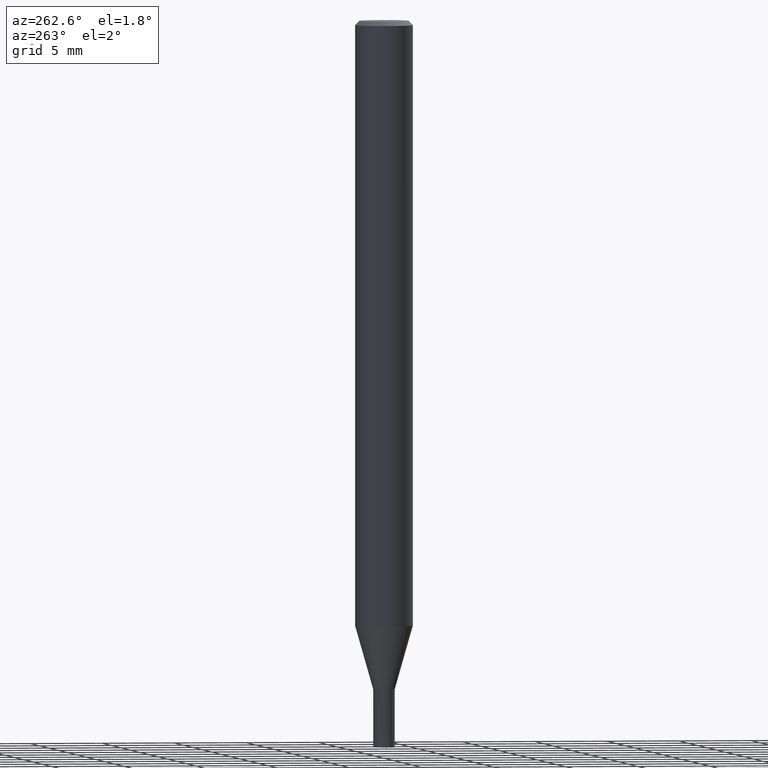
[diagram: clean part render]
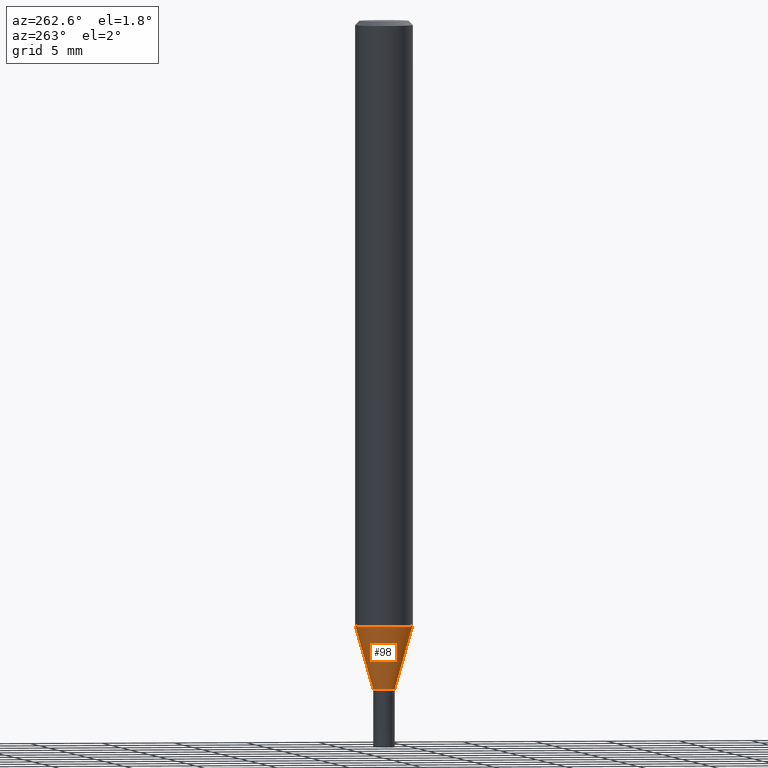
[diagram: same view with one face highlighted and labeled with its STEP entity id]
A machine part, auxiliary view. The second image highlights one B-rep face of the part: STEP entity #98.
In plain terms, the highlighted conical surface has half-angle 16.001 deg.
Its self-contained STEP definition (entity closure, byte-faithful):
#84=VERTEX_POINT('',#205);
#86=EDGE_CURVE('',#106,#84,#207,.T.);
#98=ADVANCED_FACE('',(#221),#222,.T.);
#106=VERTEX_POINT('',#230);
#108=EDGE_CURVE('',#106,#114,#232,.T.);
#114=VERTEX_POINT('',#240);
#152=EDGE_CURVE('',#174,#114,#283,.T.);
#172=EDGE_CURVE('',#84,#174,#304,.T.);
#174=VERTEX_POINT('',#306);
#205=CARTESIAN_POINT('',(2.44915147732706E-016,-1.99995,-41.641));
#207=LINE('',#335,#336);
#221=FACE_OUTER_BOUND('',#351,.T.);
#222=CONICAL_SURFACE('',#352,1.37495,0.279268973819818);
#230=CARTESIAN_POINT('',(9.18393535049092E-017,-0.74995,-46.0));
#232=CIRCLE('',#366,0.74995);
#240=CARTESIAN_POINT('',(0.0,0.74995,-46.0));
#283=LINE('',#427,#428);
#304=CIRCLE('',#458,1.99995);
#306=CARTESIAN_POINT('',(0.0,1.99995,-41.641));
#335=CARTESIAN_POINT('',(1.68377250618808E-016,-1.37495,-43.8205));
#336=VECTOR('',#476,1.0);
#351=EDGE_LOOP('',(#497,#498,#499,#500));
#352=AXIS2_PLACEMENT_3D('',#501,#502,#503);
#366=AXIS2_PLACEMENT_3D('',#508,#509,#510);
#427=CARTESIAN_POINT('',(-1.68377250618808E-016,1.37495,-43.8205));
#428=VECTOR('',#575,1.0);
#458=AXIS2_PLACEMENT_3D('',#598,#599,#600);
#476=DIRECTION('',(3.375664374138E-017,-0.27565301809855,0.961257204713265));
#497=ORIENTED_EDGE('',*,*,#152,.T.);
#498=ORIENTED_EDGE('',*,*,#108,.F.);
#499=ORIENTED_EDGE('',*,*,#86,.T.);
#500=ORIENTED_EDGE('',*,*,#172,.T.);
#501=CARTESIAN_POINT('',(0.0,0.0,-43.8205));
#502=DIRECTION('',(-0.0,-0.0,1.0));
#503=DIRECTION('',(0.0,1.0,0.0));
#508=CARTESIAN_POINT('',(0.0,0.0,-46.0));
#509=DIRECTION('',(0.0,0.0,-1.0));
#510=DIRECTION('',(0.0,1.0,0.0));
#575=DIRECTION('',(3.375664374138E-017,-0.27565301809855,-0.961257204713265));
#598=CARTESIAN_POINT('',(0.0,0.0,-41.641));
#599=DIRECTION('',(0.0,0.0,-1.0));
#600=DIRECTION('',(0.0,1.0,0.0));